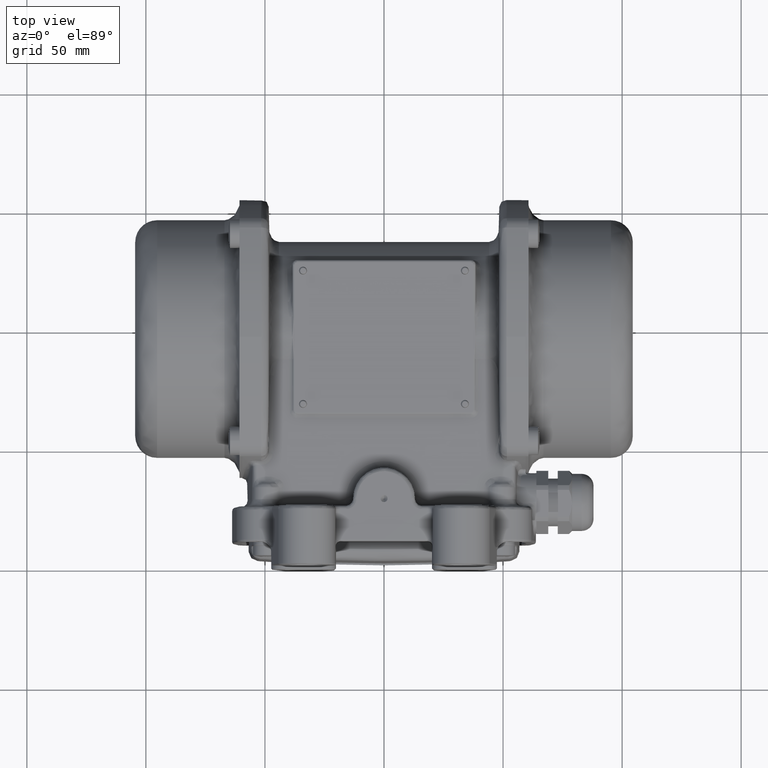
[diagram: clean part render]
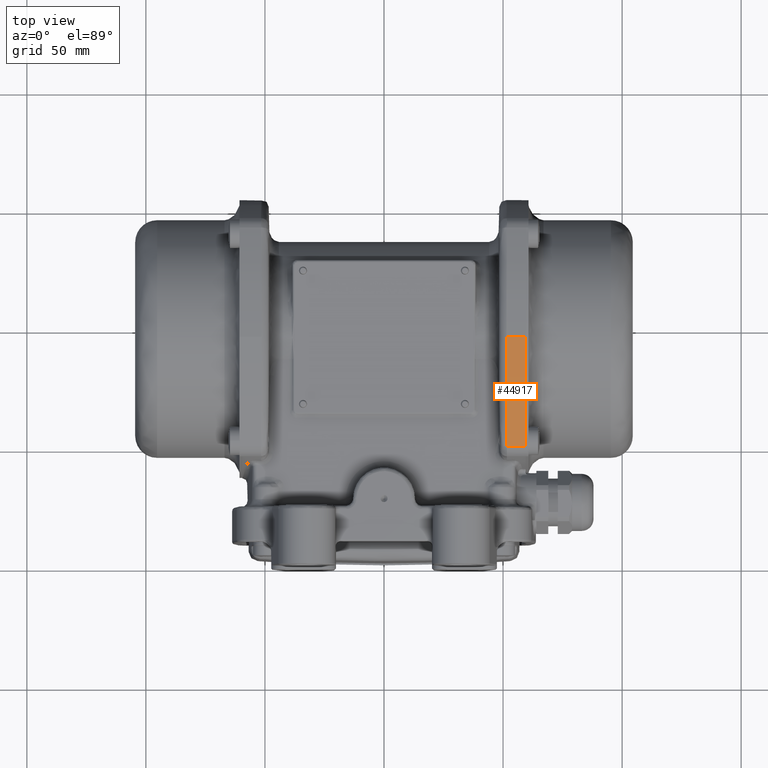
[diagram: same view with one face highlighted and labeled with its STEP entity id]
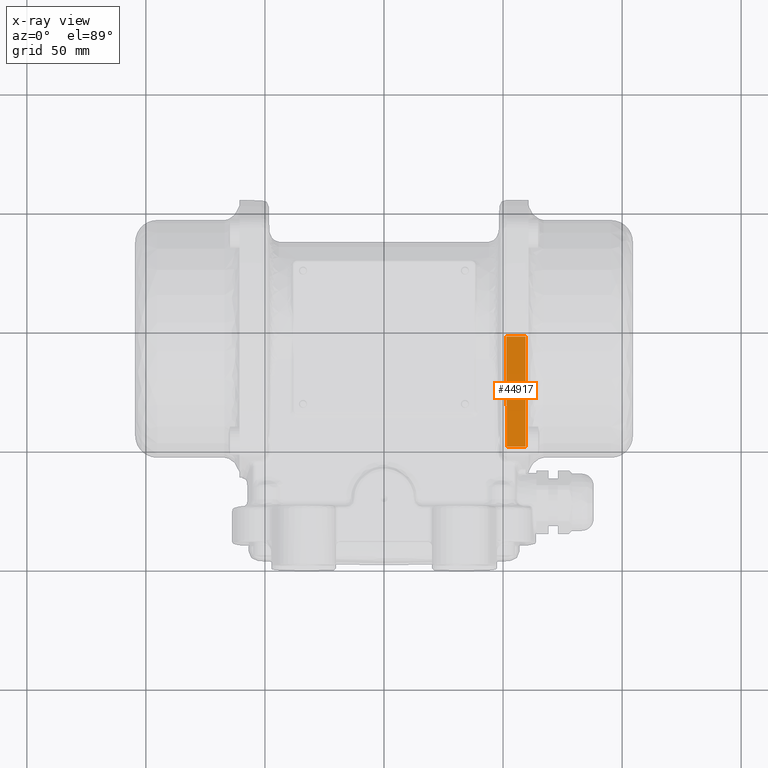
[diagram: x-ray of the same camera — body ghosted, the highlighted face saturated]
A machine part, top view. The second image highlights one B-rep face of the part: STEP entity #44917.
The next image is the same camera in x-ray: the body ghosted, the highlighted face saturated — about 0% of this face is hidden behind the body in this view.
In plain terms, the highlighted cylindrical surface (partial cylindrical patch) has radius 129 mm, axis along (1, 0, 0).
Its self-contained STEP definition (entity closure, byte-faithful):
#12537 = CARTESIAN_POINT ( 'NONE',  ( 59.50000000000000000, 96.00000000000009900, 58.50000000000000700 ) ) ;
#13619 = LINE ( 'NONE', #138427, #97542 ) ;
#17919 = CARTESIAN_POINT ( 'NONE',  ( 51.51236919346409600, 68.76533035875958400, 55.65252669724460300 ) ) ;
#18932 = CYLINDRICAL_SURFACE ( 'NONE', #98599, 129.0000000000000000 ) ;
#22586 = VERTEX_POINT ( 'NONE', #80656 ) ;
#22719 = DIRECTION ( 'NONE',  ( 0.0000000000000000000, -3.227392513445222300E-016, 1.000000000000000000 ) ) ;
#26751 = ORIENTED_EDGE ( 'NONE', *, *, #77540, .T. ) ;
#27834 = CARTESIAN_POINT ( 'NONE',  ( 51.63671979496099600, 53.71140524554340300, 51.43563194486620200 ) ) ;
#28530 = CARTESIAN_POINT ( 'NONE',  ( 59.50000000000000000, 50.01836578124579800, 50.02671618596719600 ) ) ;
#29370 = CARTESIAN_POINT ( 'NONE',  ( 51.42981408446079400, 88.10886955799050200, 58.27349483533719600 ) ) ;
#29884 = CARTESIAN_POINT ( 'NONE',  ( 51.60139193831100400, 57.44029159500139800, 52.66421566935110100 ) ) ;
#39865 = CARTESIAN_POINT ( 'NONE',  ( 51.46848223554089700, 76.43015957668629300, 57.06648685439510200 ) ) ;
#40881 = CARTESIAN_POINT ( 'NONE',  ( 51.42247398630980400, 94.02512534248110400, 58.49989616555889400 ) ) ;
#41393 = CARTESIAN_POINT ( 'NONE',  ( 51.42247061470285300, 95.99547053162832800, 58.49999994036055300 ) ) ;
#41410 = DIRECTION ( 'NONE',  ( 1.000000000000000000, 1.082467449009528000E-015, 2.519116367258504500E-031 ) ) ;
#44917 = ADVANCED_FACE ( 'NONE', ( #142166 ), #18932, .T. ) ;
#47711 = EDGE_CURVE ( 'NONE', #104648, #22586, #128424, .T. ) ;
#60041 = VERTEX_POINT ( 'NONE', #28530 ) ;
#64789 = CARTESIAN_POINT ( 'NONE',  ( 51.42247061277184600, 95.99773527005538700, 58.50000000012939700 ) ) ;
#70823 = DIRECTION ( 'NONE',  ( 0.0000000000000000000, -3.227392513445222300E-016, 1.000000000000000000 ) ) ;
#77540 = EDGE_CURVE ( 'NONE', #60041, #81048, #137475, .T. ) ;
#80656 = CARTESIAN_POINT ( 'NONE',  ( 51.42247061277319600, 96.00000000000000000, 58.50000000015510400 ) ) ;
#81048 = VERTEX_POINT ( 'NONE', #12537 ) ;
#85047 = DIRECTION ( 'NONE',  ( 1.000000000000000000, 1.082467449009528000E-015, 2.519116367258504500E-031 ) ) ;
#85549 = CARTESIAN_POINT ( 'NONE',  ( -70.50000000000000000, 95.99999999999995700, 58.50000000000000700 ) ) ;
#87267 = CARTESIAN_POINT ( 'NONE',  ( 51.42395315197239800, 92.04573469983439800, 58.45443651807919800 ) ) ;
#89023 = VECTOR ( 'NONE', #85047, 1000.000000000000000 ) ;
#89295 = CARTESIAN_POINT ( 'NONE',  ( 51.53921369121099600, 64.96723904162429600, 54.77267411939950400 ) ) ;
#91119 = EDGE_LOOP ( 'NONE', ( #104914, #149839, #106299, #26751 ) ) ;
#93620 = EDGE_CURVE ( 'NONE', #22586, #81048, #117043, .T. ) ;
#94160 = DIRECTION ( 'NONE',  ( 1.000000000000000000, 1.082467449009528000E-015, 2.519116367258504500E-031 ) ) ;
#97542 = VECTOR ( 'NONE', #41410, 1000.000000000000000 ) ;
#98599 = AXIS2_PLACEMENT_3D ( 'NONE', #142202, #94160, #22719 ) ;
#100284 = CARTESIAN_POINT ( 'NONE',  ( 51.67570246307540300, 50.01836578124579800, 50.02671618596719600 ) ) ;
#101297 = CARTESIAN_POINT ( 'NONE',  ( 51.45144845972710400, 80.29689647844858800, 57.60059974179179700 ) ) ;
#104648 = VERTEX_POINT ( 'NONE', #113463 ) ;
#104914 = ORIENTED_EDGE ( 'NONE', *, *, #93620, .F. ) ;
#106299 = ORIENTED_EDGE ( 'NONE', *, *, #135473, .T. ) ;
#107886 = DIRECTION ( 'NONE',  ( -1.000000000000000000, -1.082467449009528000E-015, -2.519116367258504500E-031 ) ) ;
#109031 = AXIS2_PLACEMENT_3D ( 'NONE', #118844, #107886, #70823 ) ;
#113463 = CARTESIAN_POINT ( 'NONE',  ( 51.67570246307540300, 50.01836578124579800, 50.02671618596719600 ) ) ;
#117043 = LINE ( 'NONE', #85549, #89023 ) ;
#118844 = CARTESIAN_POINT ( 'NONE',  ( 59.50000000000000000, 96.00000000000000000, -70.50000000000000000 ) ) ;
#123824 = CARTESIAN_POINT ( 'NONE',  ( 51.43418756271339700, 86.14932577150899800, 58.13826023329139800 ) ) ;
#124355 = CARTESIAN_POINT ( 'NONE',  ( 51.42247061277319600, 96.00000000000000000, 58.50000000015510400 ) ) ;
#128424 = B_SPLINE_CURVE_WITH_KNOTS ( 'NONE', 3,
 ( #100284, #27834, #29884, #89295, #17919, #39865, #101297, #123824, #29370, #87267, #40881, #41393, #64789, #124355 ),
 .UNSPECIFIED., .F., .F.,
 ( 4, 2, 2, 2, 2, 2, 4 ),
 ( 0.0000000000000000000, 0.2499640445783327700, 0.4999280891566657600, 0.7498921337349980800, 0.8748741560241643000, 0.9998561783133315100, 1.000000000000000000 ),
 .UNSPECIFIED. ) ;
#135473 = EDGE_CURVE ( 'NONE', #104648, #60041, #13619, .T. ) ;
#137475 = CIRCLE ( 'NONE', #109031, 129.0000000000000000 ) ;
#138427 = CARTESIAN_POINT ( 'NONE',  ( -70.50000000000000000, 50.01836578124559900, 50.02671618596719600 ) ) ;
#142166 = FACE_OUTER_BOUND ( 'NONE', #91119, .T. ) ;
#142202 = CARTESIAN_POINT ( 'NONE',  ( -70.50000000000000000, 96.00000000000000000, -70.50000000000000000 ) ) ;
#149839 = ORIENTED_EDGE ( 'NONE', *, *, #47711, .F. ) ;